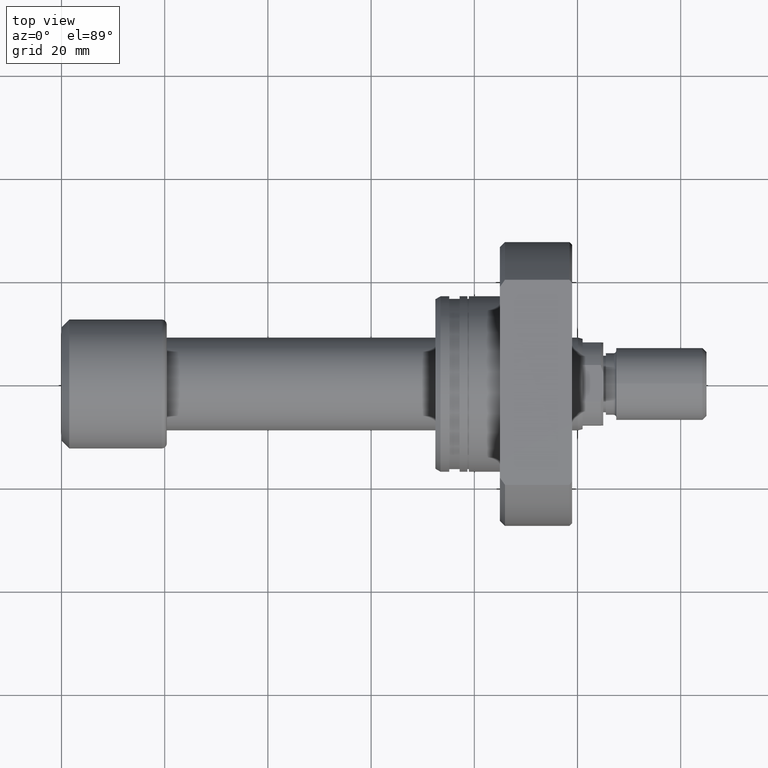
[diagram: clean part render]
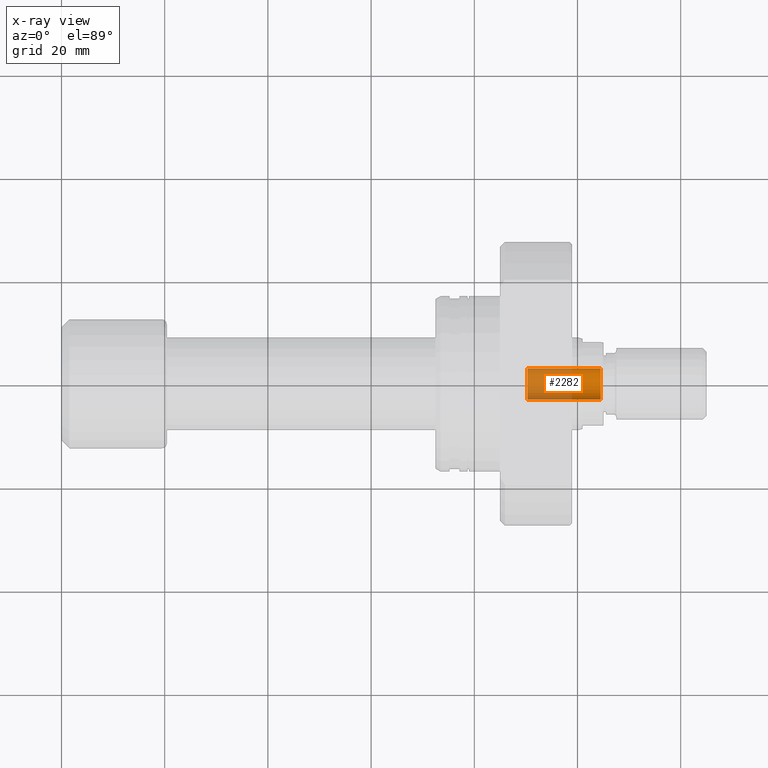
[diagram: x-ray — body ghosted, one internal face saturated and labeled with its STEP entity id]
A machine part, top view, then the same camera in x-ray: the body is ghosted and one INTERNAL B-rep face — a face not visible from any outside direction — is saturated and labeled: STEP entity #2282.
In plain terms, the highlighted cylindrical surface (edge-blend (fillet) strip) has radius 3 mm, axis along (1, -0, 0).
Its self-contained STEP definition (entity closure, byte-faithful):
#240 = DIRECTION ( 'NONE',  ( 1.000000000000000000, -1.657264799492230625E-14, -0.000000000000000000 ) ) ;
#271 = EDGE_CURVE ( 'NONE', #2655, #2662, #2813, .T. ) ;
#451 = DIRECTION ( 'NONE',  ( 1.850371707708280162E-14, 1.000000000000000000, 0.000000000000000000 ) ) ;
#503 = VERTEX_POINT ( 'NONE', #3026 ) ;
#541 = VECTOR ( 'NONE', #240, 1000.000000000000000 ) ;
#606 = CIRCLE ( 'NONE', #890, 3.000000000000509370 ) ;
#706 = EDGE_CURVE ( 'NONE', #2662, #2193, #606, .T. ) ;
#890 = AXIS2_PLACEMENT_3D ( 'NONE', #1371, #1091, #1662 ) ;
#1034 = VECTOR ( 'NONE', #1887, 1000.000000000000000 ) ;
#1037 = EDGE_LOOP ( 'NONE', ( #2877, #1321, #3097, #1679 ) ) ;
#1091 = DIRECTION ( 'NONE',  ( 1.000000000000000000, -1.657264799492254606E-14, 0.000000000000000000 ) ) ;
#1159 = CYLINDRICAL_SURFACE ( 'NONE', #2048, 3.000000000000509370 ) ;
#1279 = EDGE_CURVE ( 'NONE', #2655, #503, #1874, .T. ) ;
#1321 = ORIENTED_EDGE ( 'NONE', *, *, #271, .T. ) ;
#1340 = CARTESIAN_POINT ( 'NONE',  ( 90.29999999999992610, -3.000000000002005951, 3.673940397442683068E-16 ) ) ;
#1371 = CARTESIAN_POINT ( 'NONE',  ( 104.5000000000001137, -1.731841715469383114E-12, 0.000000000000000000 ) ) ;
#1436 = FACE_OUTER_BOUND ( 'NONE', #1037, .T. ) ;
#1662 = DIRECTION ( 'NONE',  ( -1.850371707708280162E-14, -1.000000000000000000, 0.000000000000000000 ) ) ;
#1679 = ORIENTED_EDGE ( 'NONE', *, *, #3165, .F. ) ;
#1713 = CARTESIAN_POINT ( 'NONE',  ( 104.5000000000000568, -3.000000000002240430, 3.673940397442826542E-16 ) ) ;
#1758 = CARTESIAN_POINT ( 'NONE',  ( 104.5000000000001563, 2.999999999998777422, 0.000000000000000000 ) ) ;
#1874 = CIRCLE ( 'NONE', #2581, 3.000000000000509370 ) ;
#1887 = DIRECTION ( 'NONE',  ( 1.000000000000000000, -1.657264799492230625E-14, -0.000000000000000000 ) ) ;
#2048 = AXIS2_PLACEMENT_3D ( 'NONE', #3444, #2666, #451 ) ;
#2146 = DIRECTION ( 'NONE',  ( 1.850371707708280162E-14, 1.000000000000000000, 0.000000000000000000 ) ) ;
#2193 = VERTEX_POINT ( 'NONE', #1758 ) ;
#2282 = ADVANCED_FACE ( 'NONE', ( #1436 ), #1159, .F. ) ;
#2480 = CARTESIAN_POINT ( 'NONE',  ( 90.29999999999998295, -1.496510113941484110E-12, 0.000000000000000000 ) ) ;
#2543 = CARTESIAN_POINT ( 'NONE',  ( 90.29999999999992610, -3.000000000002005951, 3.673940397442683068E-16 ) ) ;
#2581 = AXIS2_PLACEMENT_3D ( 'NONE', #2480, #2755, #2146 ) ;
#2655 = VERTEX_POINT ( 'NONE', #1340 ) ;
#2662 = VERTEX_POINT ( 'NONE', #1713 ) ;
#2666 = DIRECTION ( 'NONE',  ( 1.000000000000000000, -1.657264799492230625E-14, -0.000000000000000000 ) ) ;
#2755 = DIRECTION ( 'NONE',  ( 1.000000000000000000, -1.657264799492230625E-14, 0.000000000000000000 ) ) ;
#2813 = LINE ( 'NONE', #2543, #541 ) ;
#2877 = ORIENTED_EDGE ( 'NONE', *, *, #1279, .F. ) ;
#3026 = CARTESIAN_POINT ( 'NONE',  ( 90.30000000000003979, 2.999999999999012790, 0.000000000000000000 ) ) ;
#3097 = ORIENTED_EDGE ( 'NONE', *, *, #706, .T. ) ;
#3165 = EDGE_CURVE ( 'NONE', #503, #2193, #3308, .T. ) ;
#3308 = LINE ( 'NONE', #3615, #1034 ) ;
#3444 = CARTESIAN_POINT ( 'NONE',  ( 90.29999999999998295, -1.496510113941484110E-12, 0.000000000000000000 ) ) ;
#3615 = CARTESIAN_POINT ( 'NONE',  ( 90.30000000000003979, 2.999999999999012790, 0.000000000000000000 ) ) ;